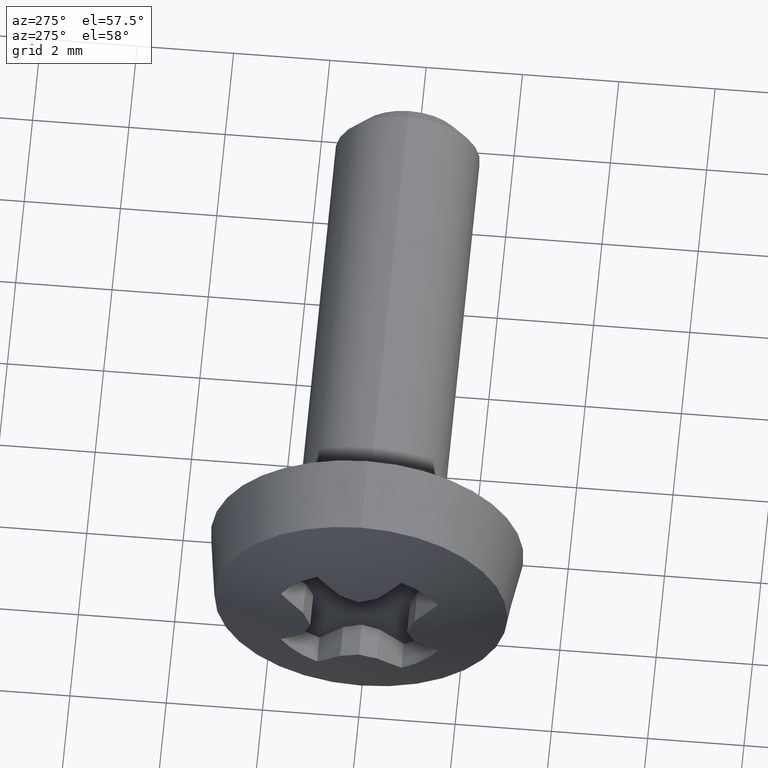
[diagram: clean part render]
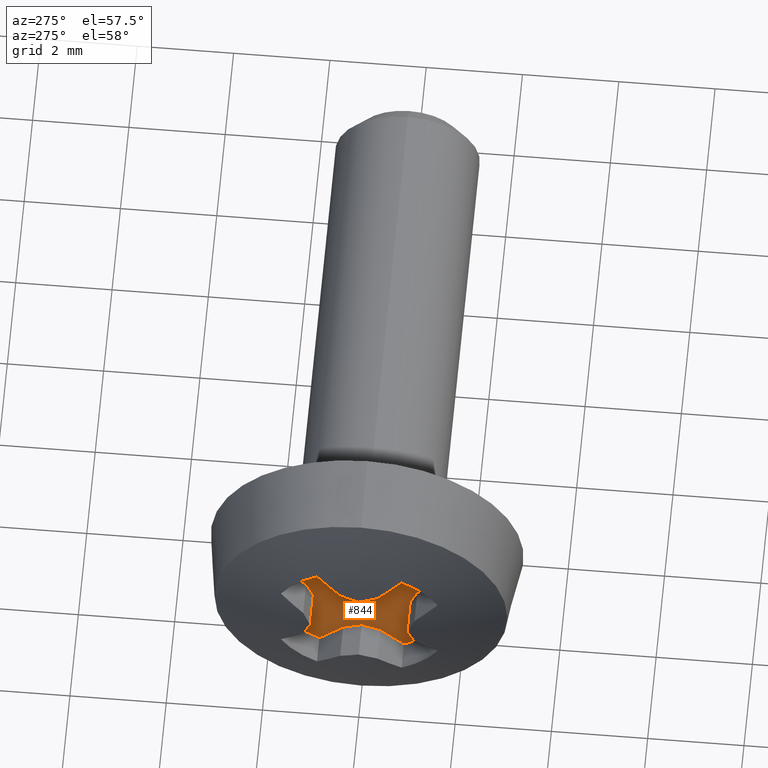
[diagram: same view with one face highlighted and labeled with its STEP entity id]
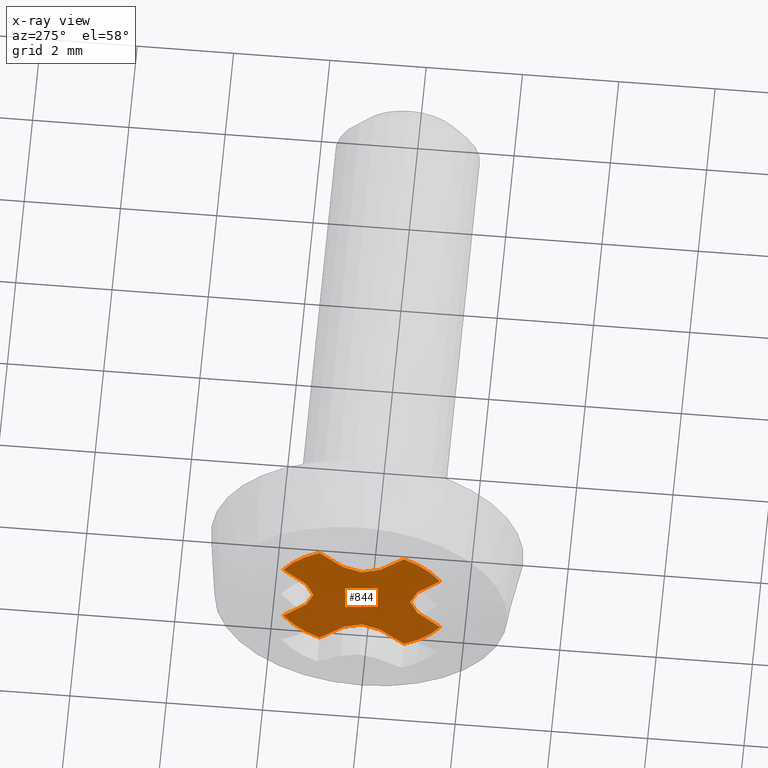
[diagram: x-ray of the same camera — body ghosted, the highlighted face saturated]
A machine part, auxiliary view. The second image highlights one B-rep face of the part: STEP entity #844.
The next image is the same camera in x-ray: the body ghosted, the highlighted face saturated — about 0% of this face is hidden behind the body in this view.
In plain terms, the highlighted planar face has unit normal (1, 0, 0).
Its self-contained STEP definition (entity closure, byte-faithful):
#8 = DIRECTION ( 'NONE',  ( 0.0000000000000000000, -0.7193398003387508900, 0.6946583704588940000 ) ) ;
#9 = DIRECTION ( 'NONE',  ( 0.0000000000000000000, -0.3583679495454526500, -0.9335804264971433500 ) ) ;
#10 = FACE_OUTER_BOUND ( 'NONE', #425, .T. ) ;
#18 = ORIENTED_EDGE ( 'NONE', *, *, #219, .F. ) ;
#24 = VERTEX_POINT ( 'NONE', #794 ) ;
#31 = DIRECTION ( 'NONE',  ( 0.0000000000000000000, -1.000000000000000000, 3.491481338843133400E-015 ) ) ;
#37 = DIRECTION ( 'NONE',  ( 0.0000000000000000000, 0.0000000000000000000, -1.000000000000000000 ) ) ;
#51 = EDGE_CURVE ( 'NONE', #611, #499, #976, .T. ) ;
#53 = AXIS2_PLACEMENT_3D ( 'NONE', #278, #1064, #211 ) ;
#71 = VECTOR ( 'NONE', #664, 999.9999999999998900 ) ;
#79 = VERTEX_POINT ( 'NONE', #421 ) ;
#81 = CARTESIAN_POINT ( 'NONE',  ( -1.300000000000000300, 1.628450527808811300, 0.8778660937063536000 ) ) ;
#89 = VECTOR ( 'NONE', #482, 1000.000000000000100 ) ;
#98 = VERTEX_POINT ( 'NONE', #377 ) ;
#101 = VECTOR ( 'NONE', #418, 1000.000000000000100 ) ;
#102 = DIRECTION ( 'NONE',  ( 1.000000000000000000, 0.0000000000000000000, 0.0000000000000000000 ) ) ;
#103 = CARTESIAN_POINT ( 'NONE',  ( -1.300000000000000300, 0.0000000000000000000, 0.0000000000000000000 ) ) ;
#116 = VECTOR ( 'NONE', #1088, 1000.000000000000100 ) ;
#120 = ORIENTED_EDGE ( 'NONE', *, *, #748, .F. ) ;
#129 = EDGE_CURVE ( 'NONE', #423, #296, #480, .T. ) ;
#132 = CARTESIAN_POINT ( 'NONE',  ( -1.300000000000000300, 3.794707603699265500E-016, 1.005765267246872700 ) ) ;
#144 = EDGE_CURVE ( 'NONE', #1192, #1126, #446, .T. ) ;
#146 = CARTESIAN_POINT ( 'NONE',  ( -1.300000000000000300, -0.3868178104665048700, -1.154250712796087500 ) ) ;
#147 = CARTESIAN_POINT ( 'NONE',  ( -1.300000000000000300, 1.154250712796086200, -0.3868178104665088700 ) ) ;
#150 = LINE ( 'NONE', #709, #889 ) ;
#163 = DIRECTION ( 'NONE',  ( 0.0000000000000000000, 0.3583679495454526500, 0.9335804264971433500 ) ) ;
#172 = DIRECTION ( 'NONE',  ( 0.0000000000000000000, 0.9335804264971419000, -0.3583679495454559200 ) ) ;
#173 = ORIENTED_EDGE ( 'NONE', *, *, #129, .F. ) ;
#179 = CIRCLE ( 'NONE', #1007, 1.850000000000013200 ) ;
#182 = EDGE_CURVE ( 'NONE', #98, #24, #891, .T. ) ;
#189 = AXIS2_PLACEMENT_3D ( 'NONE', #103, #426, #37 ) ;
#211 = DIRECTION ( 'NONE',  ( 0.0000000000000000000, 0.0000000000000000000, 1.000000000000000000 ) ) ;
#215 = EDGE_CURVE ( 'NONE', #776, #745, #372, .T. ) ;
#219 = EDGE_CURVE ( 'NONE', #693, #473, #339, .T. ) ;
#249 = VERTEX_POINT ( 'NONE', #445 ) ;
#251 = ORIENTED_EDGE ( 'NONE', *, *, #452, .F. ) ;
#265 = ORIENTED_EDGE ( 'NONE', *, *, #871, .F. ) ;
#267 = CARTESIAN_POINT ( 'NONE',  ( -1.300000000000000300, 0.8778660937063521600, 1.628450527808812200 ) ) ;
#278 = CARTESIAN_POINT ( 'NONE',  ( -1.300000000000000300, 0.0000000000000000000, 0.0000000000000000000 ) ) ;
#280 = CARTESIAN_POINT ( 'NONE',  ( -1.300000000000000300, 1.053483198554589900E-014, 1.005765267246758300 ) ) ;
#284 = ORIENTED_EDGE ( 'NONE', *, *, #462, .F. ) ;
#296 = VERTEX_POINT ( 'NONE', #573 ) ;
#300 = DIRECTION ( 'NONE',  ( 0.0000000000000000000, 1.000000000000000000, -1.047444401652940000E-014 ) ) ;
#330 = CARTESIAN_POINT ( 'NONE',  ( -1.300000000000000300, 0.3868178104667021100, -1.154250712796146300 ) ) ;
#339 = LINE ( 'NONE', #396, #101 ) ;
#342 = CARTESIAN_POINT ( 'NONE',  ( -1.300000000000000300, -1.154250712796145200, -0.3868178104667061600 ) ) ;
#350 = ORIENTED_EDGE ( 'NONE', *, *, #1140, .F. ) ;
#353 = VECTOR ( 'NONE', #8, 1000.000000000000100 ) ;
#372 = LINE ( 'NONE', #1127, #1073 ) ;
#377 = CARTESIAN_POINT ( 'NONE',  ( -1.300000000000000300, -3.511610661848633000E-015, -1.005765267246758300 ) ) ;
#381 = ORIENTED_EDGE ( 'NONE', *, *, #144, .F. ) ;
#382 = EDGE_CURVE ( 'NONE', #559, #423, #904, .T. ) ;
#396 = CARTESIAN_POINT ( 'NONE',  ( -1.300000000000000300, 0.3868178104665048700, 1.154250712796087500 ) ) ;
#418 = DIRECTION ( 'NONE',  ( -0.0000000000000000000, -0.7193398003388566900, -0.6946583704587844200 ) ) ;
#421 = CARTESIAN_POINT ( 'NONE',  ( -1.300000000000000300, 1.154250712796145200, 0.3868178104667061600 ) ) ;
#423 = VERTEX_POINT ( 'NONE', #576 ) ;
#425 = EDGE_LOOP ( 'NONE', ( #265, #381, #1202, #969, #937, #1010, #251, #994, #350, #926, #120, #173, #1184, #771, #750, #484, #812, #18, #496, #284 ) ) ;
#426 = DIRECTION ( 'NONE',  ( 1.000000000000000000, 0.0000000000000000000, 0.0000000000000000000 ) ) ;
#433 = CARTESIAN_POINT ( 'NONE',  ( -1.300000000000000300, 0.0000000000000000000, 0.0000000000000000000 ) ) ;
#442 = DIRECTION ( 'NONE',  ( 1.000000000000000000, 0.0000000000000000000, 0.0000000000000000000 ) ) ;
#445 = CARTESIAN_POINT ( 'NONE',  ( -1.300000000000000300, 1.628450527808809100, -0.8778660937063578200 ) ) ;
#446 = LINE ( 'NONE', #1008, #921 ) ;
#452 = EDGE_CURVE ( 'NONE', #1151, #98, #877, .T. ) ;
#462 = EDGE_CURVE ( 'NONE', #79, #591, #1147, .T. ) ;
#473 = VERTEX_POINT ( 'NONE', #634 ) ;
#474 = EDGE_CURVE ( 'NONE', #249, #1192, #842, .T. ) ;
#475 = VECTOR ( 'NONE', #1106, 1000.000000000000100 ) ;
#478 = CIRCLE ( 'NONE', #572, 1.850000000000013200 ) ;
#480 = LINE ( 'NONE', #570, #669 ) ;
#482 = DIRECTION ( 'NONE',  ( -0.0000000000000000000, -0.6946583704587817600, 0.7193398003388592500 ) ) ;
#484 = ORIENTED_EDGE ( 'NONE', *, *, #51, .F. ) ;
#489 = DIRECTION ( 'NONE',  ( 0.0000000000000000000, -0.6946583704588864500, -0.7193398003387581100 ) ) ;
#490 = CARTESIAN_POINT ( 'NONE',  ( -1.300000000000000300, 1.005765267246872700, -3.891081422218959100E-015 ) ) ;
#496 = ORIENTED_EDGE ( 'NONE', *, *, #1079, .F. ) ;
#499 = VERTEX_POINT ( 'NONE', #1204 ) ;
#559 = VERTEX_POINT ( 'NONE', #1031 ) ;
#563 = CARTESIAN_POINT ( 'NONE',  ( -1.300000000000000300, 0.8778660937063479400, -1.628450527808814200 ) ) ;
#570 = CARTESIAN_POINT ( 'NONE',  ( -1.300000000000000300, -1.005765267246872700, 1.091430274591702600E-014 ) ) ;
#572 = AXIS2_PLACEMENT_3D ( 'NONE', #1001, #1020, #31 ) ;
#573 = CARTESIAN_POINT ( 'NONE',  ( -1.300000000000000300, -1.005765267246758300, 0.0000000000000000000 ) ) ;
#576 = CARTESIAN_POINT ( 'NONE',  ( -1.300000000000000300, -1.154250712796083300, 0.3868178104665169200 ) ) ;
#579 = DIRECTION ( 'NONE',  ( -0.0000000000000000000, 0.9335804264972198400, 0.3583679495452533100 ) ) ;
#591 = VERTEX_POINT ( 'NONE', #81 ) ;
#597 = DIRECTION ( 'NONE',  ( 0.0000000000000000000, 0.0000000000000000000, -1.000000000000000000 ) ) ;
#598 = CARTESIAN_POINT ( 'NONE',  ( -1.300000000000000300, -3.511610661848633000E-015, -1.005765267246758300 ) ) ;
#611 = VERTEX_POINT ( 'NONE', #782 ) ;
#620 = VECTOR ( 'NONE', #579, 999.9999999999998900 ) ;
#627 = CARTESIAN_POINT ( 'NONE',  ( -1.300000000000000300, 1.154250712796145200, 0.3868178104667061600 ) ) ;
#634 = CARTESIAN_POINT ( 'NONE',  ( -1.300000000000000300, 0.3868178104665048700, 1.154250712796087500 ) ) ;
#635 = CARTESIAN_POINT ( 'NONE',  ( -1.300000000000000300, 1.005765267246758300, 0.0000000000000000000 ) ) ;
#643 = CARTESIAN_POINT ( 'NONE',  ( -1.300000000000000300, -3.794707603699265500E-016, -1.005765267246872700 ) ) ;
#657 = VECTOR ( 'NONE', #1103, 1000.000000000000100 ) ;
#662 = VERTEX_POINT ( 'NONE', #1004 ) ;
#663 = EDGE_CURVE ( 'NONE', #688, #249, #478, .T. ) ;
#664 = DIRECTION ( 'NONE',  ( -0.0000000000000000000, -0.9335804264972198400, -0.3583679495452533100 ) ) ;
#669 = VECTOR ( 'NONE', #853, 999.9999999999998900 ) ;
#688 = VERTEX_POINT ( 'NONE', #563 ) ;
#693 = VERTEX_POINT ( 'NONE', #267 ) ;
#701 = LINE ( 'NONE', #146, #949 ) ;
#707 = EDGE_CURVE ( 'NONE', #740, #1151, #701, .T. ) ;
#709 = CARTESIAN_POINT ( 'NONE',  ( -1.300000000000000300, -1.005765267246758300, 0.0000000000000000000 ) ) ;
#713 = PLANE ( 'NONE',  #189 ) ;
#714 = EDGE_CURVE ( 'NONE', #662, #559, #179, .T. ) ;
#715 = VECTOR ( 'NONE', #163, 999.9999999999998900 ) ;
#727 = CIRCLE ( 'NONE', #1021, 1.850000000000013200 ) ;
#731 = VECTOR ( 'NONE', #998, 1000.000000000000200 ) ;
#740 = VERTEX_POINT ( 'NONE', #887 ) ;
#745 = VERTEX_POINT ( 'NONE', #878 ) ;
#748 = EDGE_CURVE ( 'NONE', #296, #776, #150, .T. ) ;
#750 = ORIENTED_EDGE ( 'NONE', *, *, #965, .F. ) ;
#751 = CARTESIAN_POINT ( 'NONE',  ( -1.300000000000000300, 1.154250712796086200, -0.3868178104665088700 ) ) ;
#771 = ORIENTED_EDGE ( 'NONE', *, *, #714, .F. ) ;
#776 = VERTEX_POINT ( 'NONE', #342 ) ;
#778 = LINE ( 'NONE', #330, #475 ) ;
#782 = CARTESIAN_POINT ( 'NONE',  ( -1.300000000000000300, 3.794707603699265500E-016, 1.005765267246872700 ) ) ;
#786 = DIRECTION ( 'NONE',  ( -0.0000000000000000000, 0.7193398003388566900, 0.6946583704587844200 ) ) ;
#794 = CARTESIAN_POINT ( 'NONE',  ( -1.300000000000000300, 0.3868178104667021100, -1.154250712796146300 ) ) ;
#805 = EDGE_CURVE ( 'NONE', #473, #611, #826, .T. ) ;
#812 = ORIENTED_EDGE ( 'NONE', *, *, #805, .F. ) ;
#826 = LINE ( 'NONE', #132, #71 ) ;
#842 = LINE ( 'NONE', #751, #89 ) ;
#844 = ADVANCED_FACE ( 'NONE', ( #10 ), #713, .F. ) ;
#853 = DIRECTION ( 'NONE',  ( -0.0000000000000000000, 0.3583679495452435900, -0.9335804264972236100 ) ) ;
#857 = VECTOR ( 'NONE', #172, 1000.000000000000000 ) ;
#871 = EDGE_CURVE ( 'NONE', #1126, #79, #1173, .T. ) ;
#877 = LINE ( 'NONE', #643, #620 ) ;
#878 = CARTESIAN_POINT ( 'NONE',  ( -1.300000000000000300, -1.628450527808811300, -0.8778660937063536000 ) ) ;
#887 = CARTESIAN_POINT ( 'NONE',  ( -1.300000000000000300, -0.8778660937063521600, -1.628450527808812200 ) ) ;
#889 = VECTOR ( 'NONE', #9, 999.9999999999998900 ) ;
#891 = LINE ( 'NONE', #598, #857 ) ;
#904 = LINE ( 'NONE', #931, #657 ) ;
#921 = VECTOR ( 'NONE', #1124, 999.9999999999998900 ) ;
#926 = ORIENTED_EDGE ( 'NONE', *, *, #215, .F. ) ;
#931 = CARTESIAN_POINT ( 'NONE',  ( -1.300000000000000300, -1.154250712796083300, 0.3868178104665169200 ) ) ;
#937 = ORIENTED_EDGE ( 'NONE', *, *, #1095, .F. ) ;
#949 = VECTOR ( 'NONE', #786, 1000.000000000000100 ) ;
#965 = EDGE_CURVE ( 'NONE', #499, #662, #1114, .T. ) ;
#969 = ORIENTED_EDGE ( 'NONE', *, *, #663, .F. ) ;
#976 = LINE ( 'NONE', #280, #731 ) ;
#994 = ORIENTED_EDGE ( 'NONE', *, *, #707, .F. ) ;
#998 = DIRECTION ( 'NONE',  ( 0.0000000000000000000, -0.9335804264971394600, 0.3583679495454623600 ) ) ;
#1001 = CARTESIAN_POINT ( 'NONE',  ( -1.300000000000000300, 0.0000000000000000000, -0.0000000000000000000 ) ) ;
#1004 = CARTESIAN_POINT ( 'NONE',  ( -1.300000000000000300, -0.8778660937063366100, 1.628450527808820400 ) ) ;
#1007 = AXIS2_PLACEMENT_3D ( 'NONE', #1062, #442, #300 ) ;
#1008 = CARTESIAN_POINT ( 'NONE',  ( -1.300000000000000300, 1.005765267246872700, -3.891081422218959100E-015 ) ) ;
#1010 = ORIENTED_EDGE ( 'NONE', *, *, #182, .F. ) ;
#1020 = DIRECTION ( 'NONE',  ( 1.000000000000000000, 0.0000000000000000000, 0.0000000000000000000 ) ) ;
#1021 = AXIS2_PLACEMENT_3D ( 'NONE', #433, #102, #597 ) ;
#1031 = CARTESIAN_POINT ( 'NONE',  ( -1.300000000000000300, -1.628450527808803100, 0.8778660937063692500 ) ) ;
#1032 = CARTESIAN_POINT ( 'NONE',  ( -1.300000000000000300, -0.3868178104665048700, -1.154250712796087500 ) ) ;
#1062 = CARTESIAN_POINT ( 'NONE',  ( -1.300000000000000300, 0.0000000000000000000, 0.0000000000000000000 ) ) ;
#1064 = DIRECTION ( 'NONE',  ( 1.000000000000000000, 0.0000000000000000000, 0.0000000000000000000 ) ) ;
#1073 = VECTOR ( 'NONE', #489, 1000.000000000000100 ) ;
#1079 = EDGE_CURVE ( 'NONE', #591, #693, #727, .T. ) ;
#1088 = DIRECTION ( 'NONE',  ( 0.0000000000000000000, 0.6946583704588864500, 0.7193398003387581100 ) ) ;
#1095 = EDGE_CURVE ( 'NONE', #24, #688, #778, .T. ) ;
#1103 = DIRECTION ( 'NONE',  ( -0.0000000000000000000, 0.6946583704587767600, -0.7193398003388641300 ) ) ;
#1106 = DIRECTION ( 'NONE',  ( 0.0000000000000000000, 0.7193398003387557700, -0.6946583704588890100 ) ) ;
#1114 = LINE ( 'NONE', #1171, #353 ) ;
#1124 = DIRECTION ( 'NONE',  ( -0.0000000000000000000, -0.3583679495452500900, 0.9335804264972210600 ) ) ;
#1126 = VERTEX_POINT ( 'NONE', #490 ) ;
#1127 = CARTESIAN_POINT ( 'NONE',  ( -1.300000000000000300, -1.154250712796145200, -0.3868178104667061600 ) ) ;
#1140 = EDGE_CURVE ( 'NONE', #745, #740, #1187, .T. ) ;
#1147 = LINE ( 'NONE', #627, #116 ) ;
#1151 = VERTEX_POINT ( 'NONE', #1032 ) ;
#1171 = CARTESIAN_POINT ( 'NONE',  ( -1.300000000000000300, -0.3868178104666940600, 1.154250712796149200 ) ) ;
#1173 = LINE ( 'NONE', #635, #715 ) ;
#1184 = ORIENTED_EDGE ( 'NONE', *, *, #382, .F. ) ;
#1187 = CIRCLE ( 'NONE', #53, 1.850000000000013200 ) ;
#1192 = VERTEX_POINT ( 'NONE', #147 ) ;
#1202 = ORIENTED_EDGE ( 'NONE', *, *, #474, .F. ) ;
#1204 = CARTESIAN_POINT ( 'NONE',  ( -1.300000000000000300, -0.3868178104666940600, 1.154250712796149200 ) ) ;